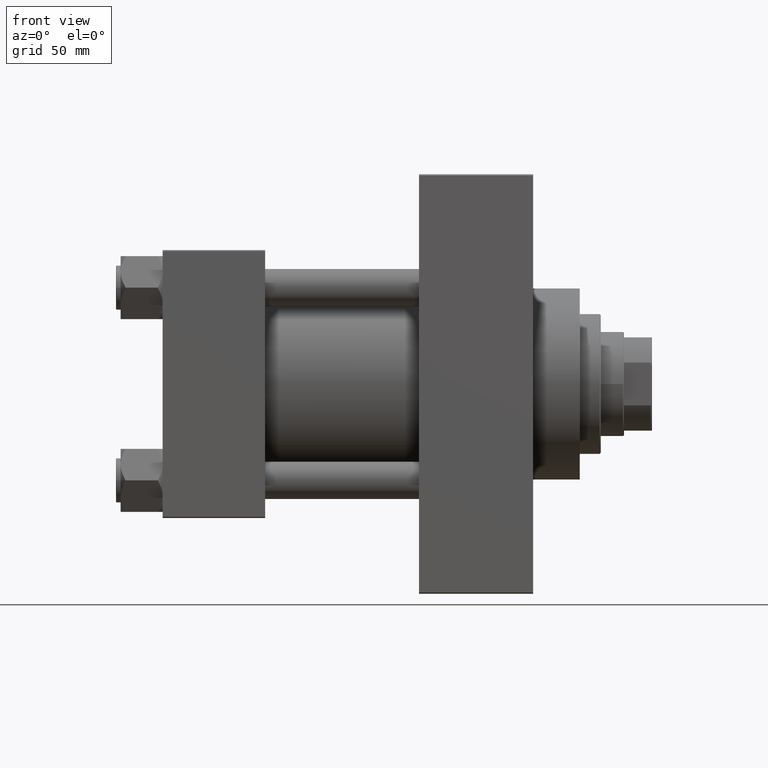
[diagram: clean part render]
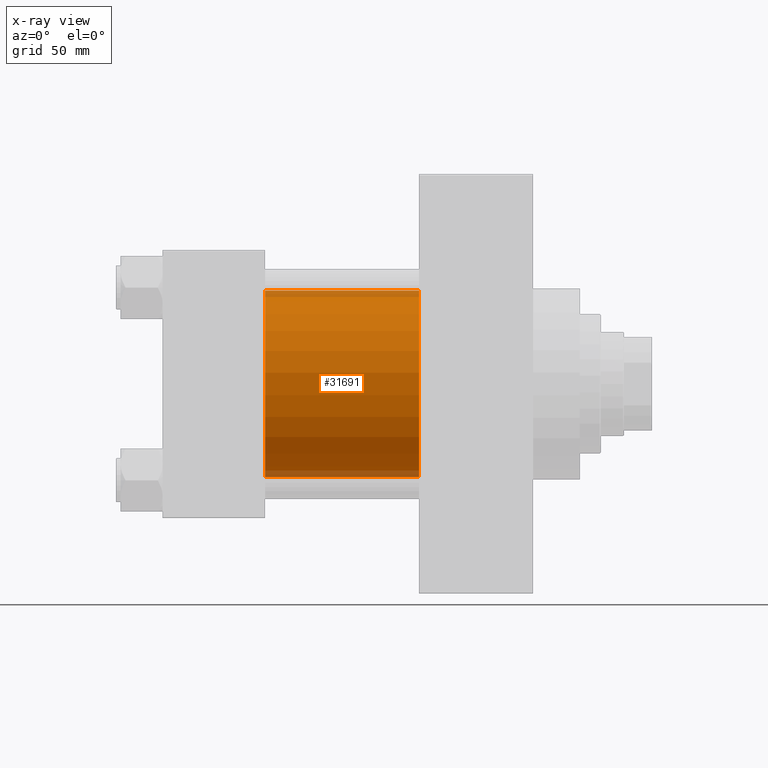
[diagram: x-ray — body ghosted, one internal face saturated and labeled with its STEP entity id]
A machine part, front view, then the same camera in x-ray: the body is ghosted and one INTERNAL B-rep face — a face not visible from any outside direction — is saturated and labeled: STEP entity #31691.
In plain terms, the highlighted cylindrical surface (partial cylindrical patch) has radius 40 mm, axis along (-1, -0, -0).
Its self-contained STEP definition (entity closure, byte-faithful):
#30 = FACE_OUTER_BOUND ( 'NONE', #44801, .T. ) ;
#2107 = CARTESIAN_POINT ( 'NONE',  ( 110.0000000000000000, -2.602085213965210642E-15, 40.00000000000000000 ) ) ;
#2624 = DIRECTION ( 'NONE',  ( -1.000000000000000000, -0.000000000000000000, -0.000000000000000000 ) ) ;
#7956 = CYLINDRICAL_SURFACE ( 'NONE', #16404, 40.00000000000000000 ) ;
#9279 = EDGE_CURVE ( 'NONE', #15114, #25296, #28321, .T. ) ;
#11675 = AXIS2_PLACEMENT_3D ( 'NONE', #43322, #32488, #47196 ) ;
#12763 = CARTESIAN_POINT ( 'NONE',  ( 110.0000000000000000, 2.296501982624201990E-15, -40.00000000000000000 ) ) ;
#15114 = VERTEX_POINT ( 'NONE', #2107 ) ;
#16404 = AXIS2_PLACEMENT_3D ( 'NONE', #44352, #30370, #44830 ) ;
#16628 = CARTESIAN_POINT ( 'NONE',  ( 110.0000000000000000, -2.602085213965210642E-15, 0.000000000000000000 ) ) ;
#17976 = ORIENTED_EDGE ( 'NONE', *, *, #19907, .F. ) ;
#18232 = EDGE_CURVE ( 'NONE', #15114, #30039, #34100, .T. ) ;
#19413 = CARTESIAN_POINT ( 'NONE',  ( 110.0000000000000000, -2.602085213965210642E-15, 40.00000000000000000 ) ) ;
#19907 = EDGE_CURVE ( 'NONE', #30039, #23570, #43175, .T. ) ;
#23570 = VERTEX_POINT ( 'NONE', #47545 ) ;
#25296 = VERTEX_POINT ( 'NONE', #30813 ) ;
#27764 = VECTOR ( 'NONE', #31422, 1000.000000000000000 ) ;
#28321 = CIRCLE ( 'NONE', #30702, 40.00000000000000000 ) ;
#30039 = VERTEX_POINT ( 'NONE', #37519 ) ;
#30370 = DIRECTION ( 'NONE',  ( -1.000000000000000000, -0.000000000000000000, -0.000000000000000000 ) ) ;
#30702 = AXIS2_PLACEMENT_3D ( 'NONE', #16628, #35181, #35888 ) ;
#30813 = CARTESIAN_POINT ( 'NONE',  ( 110.0000000000000000, 2.296501982624201990E-15, -40.00000000000000000 ) ) ;
#31422 = DIRECTION ( 'NONE',  ( -1.000000000000000000, -0.000000000000000000, -0.000000000000000000 ) ) ;
#31691 = ADVANCED_FACE ( 'NONE', ( #30 ), #7956, .F. ) ;
#32488 = DIRECTION ( 'NONE',  ( 1.000000000000000000, 0.000000000000000000, 0.000000000000000000 ) ) ;
#34100 = LINE ( 'NONE', #19413, #27764 ) ;
#34386 = EDGE_CURVE ( 'NONE', #25296, #23570, #42388, .T. ) ;
#35181 = DIRECTION ( 'NONE',  ( 1.000000000000000000, 0.000000000000000000, 0.000000000000000000 ) ) ;
#35888 = DIRECTION ( 'NONE',  ( 0.000000000000000000, 0.000000000000000000, -1.000000000000000000 ) ) ;
#36520 = VECTOR ( 'NONE', #2624, 1000.000000000000000 ) ;
#37519 = CARTESIAN_POINT ( 'NONE',  ( 44.00000000000000000, -2.602085213965210642E-15, 40.00000000000000000 ) ) ;
#37884 = ORIENTED_EDGE ( 'NONE', *, *, #9279, .T. ) ;
#42388 = LINE ( 'NONE', #12763, #36520 ) ;
#43175 = CIRCLE ( 'NONE', #11675, 40.00000000000000000 ) ;
#43322 = CARTESIAN_POINT ( 'NONE',  ( 44.00000000000000000, -2.602085213965210642E-15, 0.000000000000000000 ) ) ;
#44352 = CARTESIAN_POINT ( 'NONE',  ( 110.0000000000000000, -2.602085213965210642E-15, 0.000000000000000000 ) ) ;
#44801 = EDGE_LOOP ( 'NONE', ( #37884, #45276, #17976, #45752 ) ) ;
#44830 = DIRECTION ( 'NONE',  ( 0.000000000000000000, 0.000000000000000000, 1.000000000000000000 ) ) ;
#45276 = ORIENTED_EDGE ( 'NONE', *, *, #34386, .T. ) ;
#45752 = ORIENTED_EDGE ( 'NONE', *, *, #18232, .F. ) ;
#47196 = DIRECTION ( 'NONE',  ( 0.000000000000000000, 0.000000000000000000, -1.000000000000000000 ) ) ;
#47545 = CARTESIAN_POINT ( 'NONE',  ( 44.00000000000000000, 2.296501982624201990E-15, -40.00000000000000000 ) ) ;